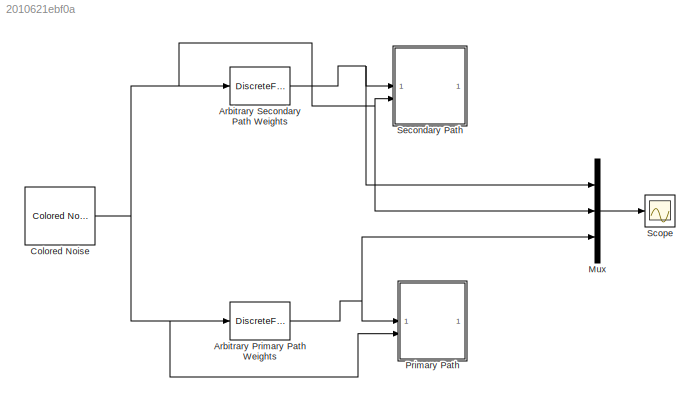
MODEL slx_2010621ebf0a
KIND model
CONFIG AbsTol = auto
CONFIG EnableMultiTasking = off
CONFIG FixedStep = auto
CONFIG MaxStep = auto
CONFIG MinStep = auto
CONFIG RelTol = 1e-3
CONFIG SampleTimeConstraint = Unconstrained
CONFIG SolverName = VariableStepAuto
CONFIG StartTime = 0.0
CONFIG StopTime = 10.0
BLOCK [DiscreteFir] Arbitrary Primary Path Weights
  Coefficients = conv([.1 -.1 .2 -.2 .3 -.3 .15 -.15],[0.5 0.5 -.3 -.3 -.2 -.2])
  InputPortMap = u0
  OutputPortMap = o0
BLOCK [DiscreteFir] Arbitrary Secondary Path Weights
  Coefficients = [0.5 0.5 -.3 -.3 -.2 -.2]
  InputPortMap = u0
  OutputPortMap = o0
BLOCK [Reference] Colored Noise  REF=dspsrcs4/Colored Noise
  LibrarySourceBlock = audiosources/Colored Noise
  SourceBlock = dspsrcs4/Colored Noise
  SourceType = dsp.simulink.ColoredNoise
BLOCK [Mux] Mux
  DisplayOption = bar
  Inputs = 3
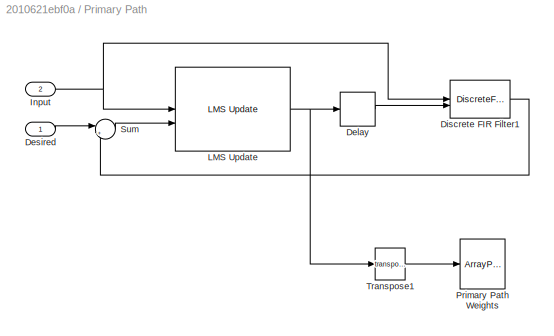
BLOCK [SubSystem] Primary Path
BLOCK [Delay] Primary Path/Delay
  DelayLength = 1
  InitialCondition = 0
  InputPortMap = u0
BLOCK [Inport] Primary Path/Desired
BLOCK [DiscreteFir] Primary Path/Discrete FIR Filter1
  CoefSource = Input port
  InputPortMap = u0,u1
  OutputPortMap = o0
BLOCK [Inport] Primary Path/Input
  Port = 2
BLOCK [Reference] Primary Path/LMS Update  REF=dspadpt3/LMS Update
  SourceBlock = dspadpt3/LMS Update
  SourceType = dsp.simulink.LMSUpdate
BLOCK [ArrayPlot] Primary Path/Primary Path Weights
  GraphicalSettings = {"Style":{"BackgroundColor":[0.12941176470588237,0.12941176470588237,0.12941176470588237],"AxesColor":[0.07058823529411765,0.07058823529411765,0.07058823529411765],"LabelsColor":[0.8509803921568627,0.8509803921568627,0.8509803921568627],"PreserveColors":false,"Visible":[true],"LineStyle":["-"],"LineColor":[[1,1,0.06666666666666667]],"LineWidth":[1.5],"Marker":["o"],"FontSize":"small"},"Cursors":{"...<+534ch>
  ScopeFrameLocation = window
  WasSavedAsWebScope = on
  WindowPosition = [2.000000,50.000000,766.000000,785.000000,]
  YLimits = [-0.0074 0.0219]
BLOCK [Sum] Primary Path/Sum
  Inputs = |+-
BLOCK [Math] Primary Path/Transpose1
  Operator = transpose
BLOCK [Scope] Scope
  Floating = off
  NumInputPorts = 1
  ScopeSpecificationString = Simulink.scopes.TimeScopeBlockCfg('CurrentConfiguration', extmgr.ConfigurationSet(extmgr.Configuration('Core','General UI',true),extmgr.Configuration('Core','Source UI',true),extmgr.Configuration('Sources','WiredSimulink',true),extmgr.Configuration('Visuals','Time Domain',true,'SerializedDisplays',{struct('MinYLimReal','-2.29464','MaxYLimReal','2.27599','YLabelReal','','MinYLimMag','0.00000','MaxY...<+1494ch>
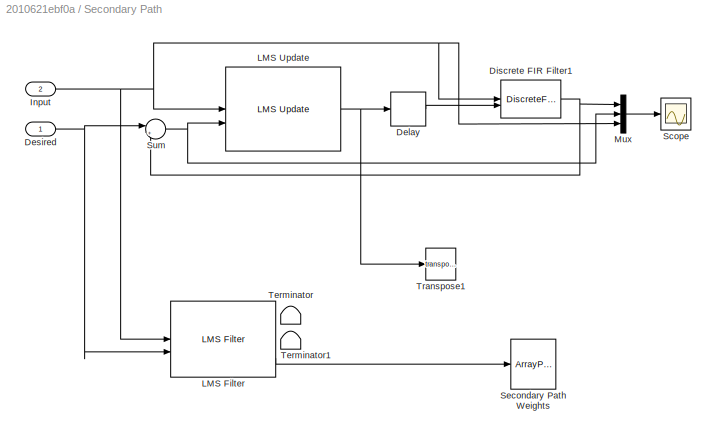
BLOCK [SubSystem] Secondary Path
BLOCK [Delay] Secondary Path/Delay
  Commented = on
  DelayLength = 1
  InitialCondition = 0
  InputPortMap = u0
BLOCK [Inport] Secondary Path/Desired
BLOCK [DiscreteFir] Secondary Path/Discrete FIR Filter1
  CoefSource = Input port
  Commented = on
  InputPortMap = u0,u1
  OutputPortMap = o0
BLOCK [Inport] Secondary Path/Input
  Port = 2
BLOCK [Reference] Secondary Path/LMS Filter  REF=dspadpt3/LMS Filter
  LibrarySourceBlock = dsphdlsupportfiltering/LMS Filter
  SourceBlock = dspadpt3/LMS Filter
  SourceType = LMS Filter
BLOCK [Reference] Secondary Path/LMS Update  REF=dspadpt3/LMS Update
  Commented = on
  SourceBlock = dspadpt3/LMS Update
  SourceType = dsp.simulink.LMSUpdate
BLOCK [Mux] Secondary Path/Mux
  DisplayOption = bar
  Inputs = 3
BLOCK [Scope] Secondary Path/Scope
  Floating = off
  NumInputPorts = 1
  ScopeSpecificationString = Simulink.scopes.TimeScopeBlockCfg('CurrentConfiguration', extmgr.ConfigurationSet(extmgr.Configuration('Core','General UI',true),extmgr.Configuration('Core','Source UI',true),extmgr.Configuration('Sources','WiredSimulink',true,'DataLoggingVariableName','ScopeData1'),extmgr.Configuration('Visuals','Time Domain',true,'SerializedDisplays',{struct('MinYLimReal','-2.29464','MaxYLimReal','2.27599','YLab...<+1486ch>
BLOCK [ArrayPlot] Secondary Path/Secondary Path Weights
  GraphicalSettings = {"Style":{"BackgroundColor":[0.12941176470588237,0.12941176470588237,0.12941176470588237],"AxesColor":[0.07058823529411765,0.07058823529411765,0.07058823529411765],"LabelsColor":[0.8509803921568627,0.8509803921568627,0.8509803921568627],"PreserveColors":false,"Visible":[true],"LineStyle":["-"],"LineColor":[[1,1,0.06666666666666667]],"LineWidth":[1.5],"Marker":["o"],"FontSize":"small"},"Cursors":{"...<+534ch>
  ScopeFrameLocation = window
  WasSavedAsWebScope = on
  WindowPosition = [770.000000,50.000000,766.000000,785.000000,]
  YLimits = [-0.0714 0.2783]
BLOCK [Sum] Secondary Path/Sum
  Commented = on
  Inputs = |+-
BLOCK [Terminator] Secondary Path/Terminator
BLOCK [Terminator] Secondary Path/Terminator1
BLOCK [Math] Secondary Path/Transpose1
  Operator = transpose
NET Arbitrary Primary Path Weights:1 -> Mux:3, Primary Path:1
NET Arbitrary Secondary Path Weights:1 -> Mux:1, Secondary Path:1
NET Colored Noise:1 -> Arbitrary Primary Path Weights:1, Arbitrary Secondary Path Weights:1, Mux:2, Primary Path:2, Secondary Path:2
LINE Mux:1 -> Scope:1
LINE Primary Path/Delay:1 -> Primary Path/Discrete FIR Filter1:2
LINE Primary Path/Desired:1 -> Primary Path/Sum:1
LINE Primary Path/Discrete FIR Filter1:1 -> Primary Path/Sum:2
NET Primary Path/Input:1 -> Primary Path/Discrete FIR Filter1:1, Primary Path/LMS Update:1
NET Primary Path/LMS Update:1 -> Primary Path/Delay:1, Primary Path/Transpose1:1
LINE Primary Path/Sum:1 -> Primary Path/LMS Update:2
LINE Primary Path/Transpose1:1 -> Primary Path/Primary Path Weights:1
LINE Secondary Path/Delay:1 -> Secondary Path/Discrete FIR Filter1:2
NET Secondary Path/Desired:1 -> Secondary Path/LMS Filter:2, Secondary Path/Sum:1
NET Secondary Path/Discrete FIR Filter1:1 -> Secondary Path/Mux:1, Secondary Path/Sum:2
NET Secondary Path/Input:1 -> Secondary Path/Discrete FIR Filter1:1, Secondary Path/LMS Filter:1, Secondary Path/LMS Update:1, Secondary Path/Mux:3
LINE Secondary Path/LMS Filter:3 -> Secondary Path/Secondary Path Weights:1
NET Secondary Path/LMS Update:1 -> Secondary Path/Delay:1, Secondary Path/Transpose1:1
LINE Secondary Path/Mux:1 -> Secondary Path/Scope:1
NET Secondary Path/Sum:1 -> Secondary Path/LMS Update:2, Secondary Path/Mux:2
note: NET lines group one-source signal fan-out (src -> all destinations, sorted); 1:1 wires keep LINE
